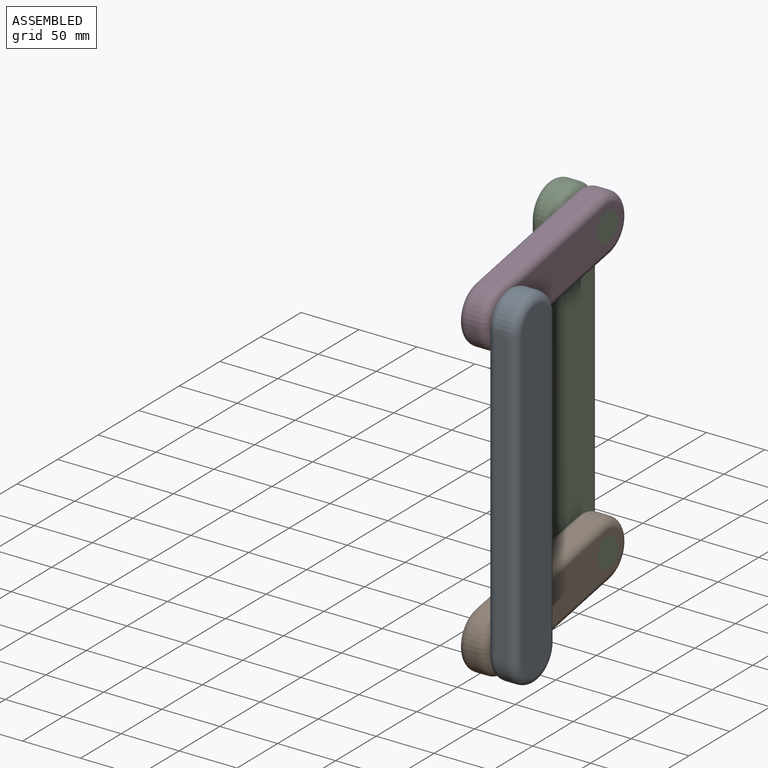
[diagram: assembled view]
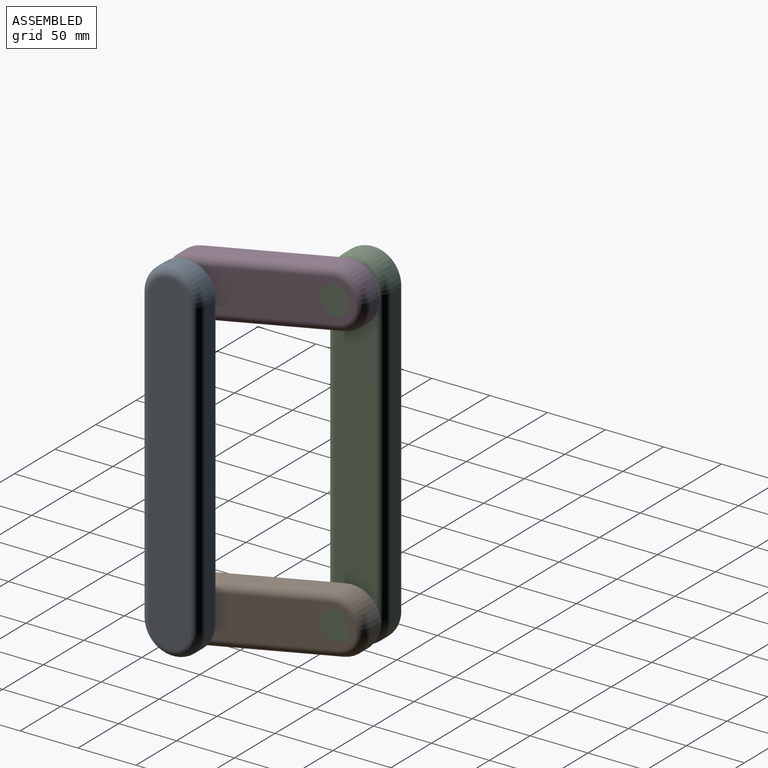
[diagram: assembled view, second angle]
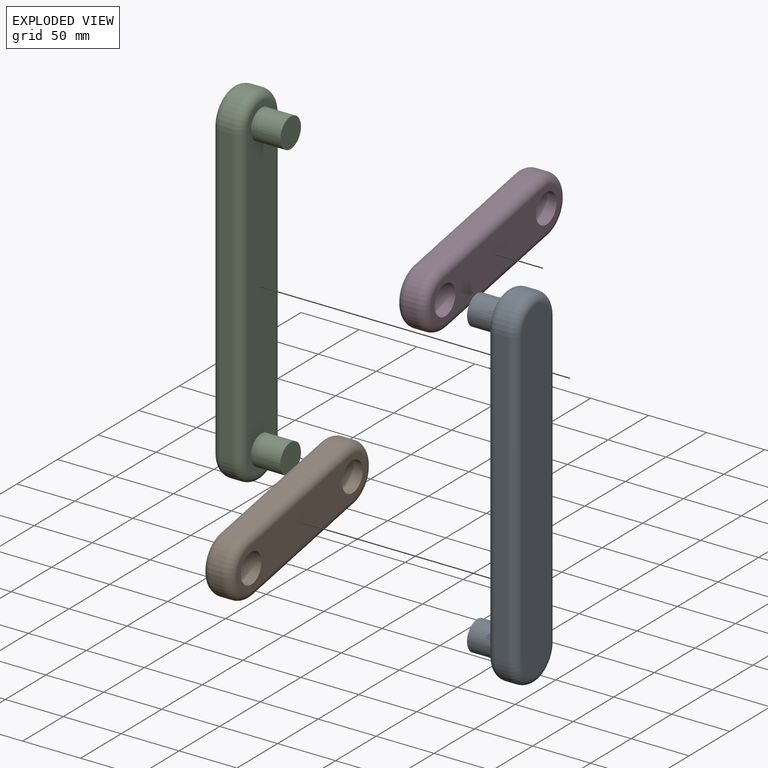
[diagram: exploded view]
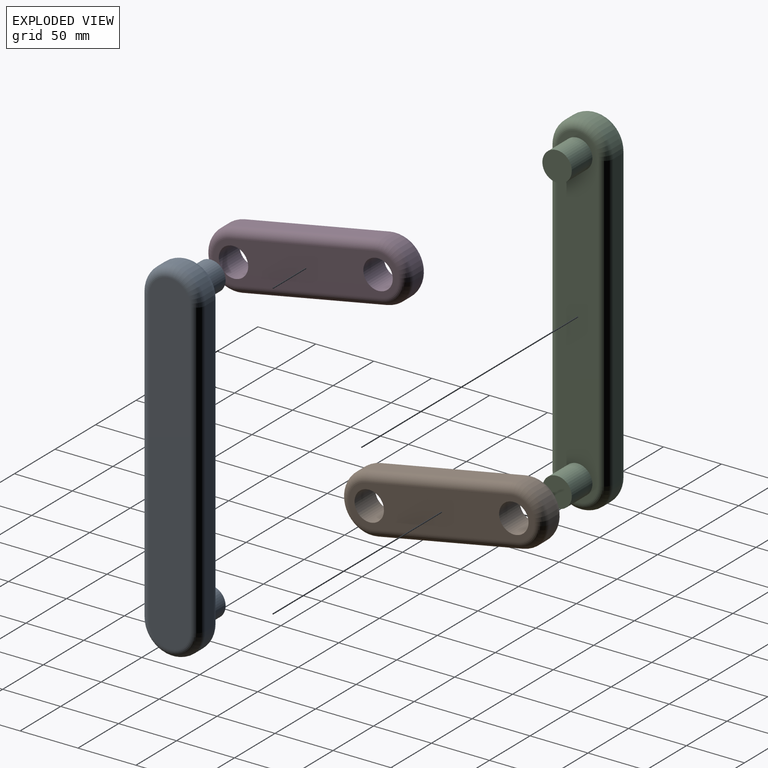
[diagram: exploded view, second angle]
ASSEMBLY  parts=4 mates=4
PART A: 18 faces, bbox 50.8x55x309 mm
  f0: plane 254x10.16mm, normal (0,1,0), area 2580.6mm2, adj f1,f3,f13,f17
  f1: cylinder r=25.4mm len=50.8mm, axis (-1,0,0), area 810.7mm2, adj f0,f2,f11,f15
  f2: plane 254x10.16mm, normal (0,-1,0), area 2580.6mm2, adj f1,f3,f10,f14
  f3: cylinder r=25.4mm len=50.8mm, axis (-1,0,0), area 810.7mm2, adj f0,f2,f12,f16
  f4: plane 289.56x35.56mm, normal (1,0,0), area 10025.4mm2, adj f14,f15,f16,f17
  f5: plane 289.56x35.56mm, normal (-1,0,0), area 9012mm2, adj f7,f9,f10,f11,f12,f13
  f6: plane 25.4x25.4mm, normal (-1,0,0), area 506.7mm2, adj f7
  f7: cylinder r=12.7mm len=25.4mm, axis (-1,0,0), area 2026.8mm2, adj f5,f6
  f8: plane 25.4x25.4mm, normal (-1,0,0), area 506.7mm2, adj f9
  f9: cylinder r=12.7mm len=25.4mm, axis (-1,0,0), area 2026.8mm2, adj f5,f8
  f10: cylinder r=7.62mm len=254mm, axis (0,0,-1), area 3040.2mm2, adj f2,f5,f11,f12
  f11: torus R=17.78mm, axis (1,0,0), area 851mm2, adj f1,f5,f10,f13
  f12: torus R=17.78mm, axis (1,0,0), area 851mm2, adj f3,f5,f10,f13
  f13: cylinder r=7.62mm len=254mm, axis (0,0,1), area 3040.2mm2, adj f0,f5,f11,f12
  f14: cylinder r=7.62mm len=254mm, axis (0,0,1), area 3040.2mm2, adj f2,f4,f15,f16
  f15: torus R=17.78mm, axis (1,0,0), area 851mm2, adj f1,f4,f14,f17
  f16: torus R=17.78mm, axis (1,0,0), area 851mm2, adj f3,f4,f14,f17
  f17: cylinder r=7.62mm len=254mm, axis (0,0,-1), area 3040.2mm2, adj f0,f4,f15,f16
PART B: 16 faces, bbox 25.4x182x55 mm
  f0: plane 127x10.16mm, normal (0,0,1), area 1290.3mm2, adj f1,f5,f10,f12
  f1: cylinder r=25.4mm len=50.8mm, axis (-1,0,0), area 810.7mm2, adj f0,f2,f8,f13
  f2: plane 127x10.16mm, normal (0,0,-1), area 1290.3mm2, adj f1,f5,f9,f15
  f3: cylinder r=12.7mm len=25.4mm, axis (-1,0,0), area 2026.8mm2, adj f6,f7
  f4: cylinder r=12.7mm len=25.4mm, axis (-1,0,0), area 2026.8mm2, adj f6,f7
  f5: cylinder r=25.4mm len=50.8mm, axis (-1,0,0), area 810.7mm2, adj f0,f2,f11,f14
  f6: plane 162.56x35.56mm, normal (1,0,0), area 4495.9mm2, adj f3,f4,f12,f13,f14,f15
  f7: plane 162.56x35.56mm, normal (-1,0,0), area 4495.9mm2, adj f3,f4,f8,f9,f10,f11
  f8: torus R=17.78mm, axis (1,0,0), area 851mm2, adj f1,f7,f9,f10
  f9: cylinder r=7.62mm len=127mm, axis (0,1,0), area 1520.1mm2, adj f2,f7,f8,f11
  f10: cylinder r=7.62mm len=127mm, axis (0,-1,0), area 1520.1mm2, adj f0,f7,f8,f11
  f11: torus R=17.78mm, axis (1,0,0), area 851mm2, adj f5,f7,f9,f10
  f12: cylinder r=7.62mm len=127mm, axis (0,1,0), area 1520.1mm2, adj f0,f6,f13,f14
  f13: torus R=17.78mm, axis (1,0,0), area 851mm2, adj f1,f6,f12,f15
  f14: torus R=17.78mm, axis (1,0,0), area 851mm2, adj f5,f6,f12,f15
  f15: cylinder r=7.62mm len=127mm, axis (0,-1,0), area 1520.1mm2, adj f2,f6,f13,f14
PART C: same geometry as A
PART D: 16 faces, bbox 25.4x182x55 mm
  f0: plane 127x10.16mm, normal (0,0,1), area 1290.3mm2, adj f1,f5,f8,f12
  f1: cylinder r=25.4mm len=50.8mm, axis (-1,0,0), area 810.7mm2, adj f0,f2,f9,f13
  f2: plane 127x10.16mm, normal (0,0,-1), area 1290.3mm2, adj f1,f5,f11,f15
  f3: cylinder r=12.7mm len=25.4mm, axis (-1,0,0), area 2026.8mm2, adj f6,f7
  f4: cylinder r=12.7mm len=25.4mm, axis (-1,0,0), area 2026.8mm2, adj f6,f7
  f5: cylinder r=25.4mm len=50.8mm, axis (-1,0,0), area 810.7mm2, adj f0,f2,f10,f14
  f6: plane 162.56x35.56mm, normal (1,0,0), area 4495.9mm2, adj f3,f4,f12,f13,f14,f15
  f7: plane 162.56x35.56mm, normal (-1,0,0), area 4495.9mm2, adj f3,f4,f8,f9,f10,f11
  f8: cylinder r=7.62mm len=127mm, axis (0,-1,0), area 1520.1mm2, adj f0,f7,f9,f10
  f9: torus R=17.78mm, axis (1,0,0), area 851mm2, adj f1,f7,f8,f11
  f10: torus R=17.78mm, axis (1,0,0), area 851mm2, adj f5,f7,f8,f11
  f11: cylinder r=7.62mm len=127mm, axis (0,1,0), area 1520.1mm2, adj f2,f7,f9,f10
  f12: cylinder r=7.62mm len=127mm, axis (0,1,0), area 1520.1mm2, adj f0,f6,f13,f14
  f13: torus R=17.78mm, axis (1,0,0), area 851mm2, adj f1,f6,f12,f15
  f14: torus R=17.78mm, axis (1,0,0), area 851mm2, adj f5,f6,f12,f15
  f15: cylinder r=7.62mm len=127mm, axis (0,-1,0), area 1520.1mm2, adj f2,f6,f13,f14
PLACE A t=(25.4,364.13,-147.89)mm
PLACE B rot(axis=(1,0,0),10.8deg) t=(0,236.4,-61.93)mm
PLACE C rot(axis=(0,0,-1),180deg) t=(0,-90,-124.09)mm fixed
PLACE D rot(axis=(1,0,0),10.8deg) t=(0,260.32,129.89)mm
MATE revolute C.f1 <-> D.f4  axis (1,0,0) through (25.4,199.44,118.27)mm
MATE revolute B.f4 <-> C.f3  axis (1,0,0) through (25.4,199.44,-135.73)mm
MATE revolute A.f3 <-> B.f1  axis (-1,0,0) through (0,74.69,-159.54)mm
MATE revolute D.f1 <-> A.f1  axis (-1,0,0) through (0,74.69,94.46)mm
